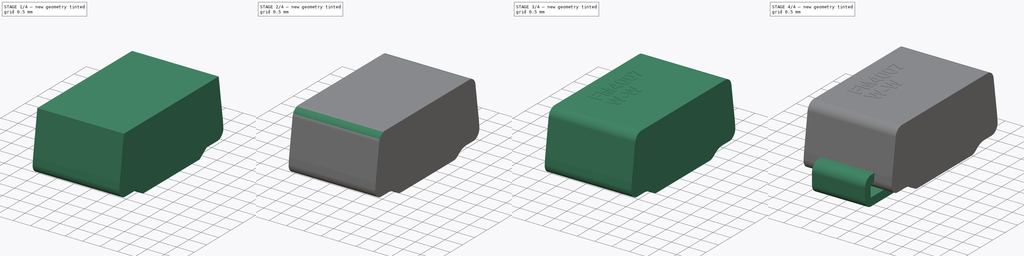
[diagram: build sequence overview — one tinted view per stage of 4, left to right]
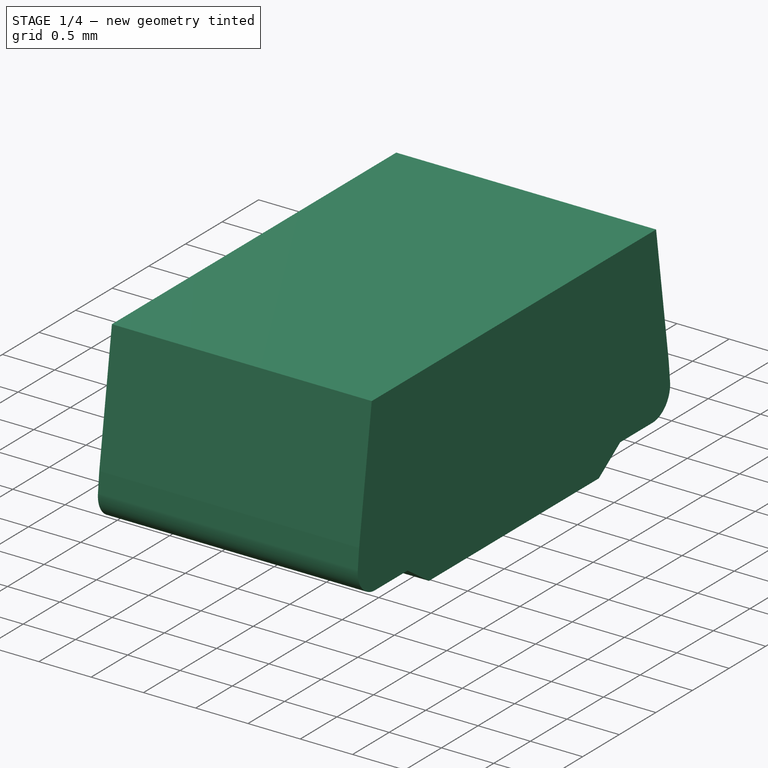
[diagram: stage 1 of 4 — iso view after this stage's code; geometry added in this stage tinted green]
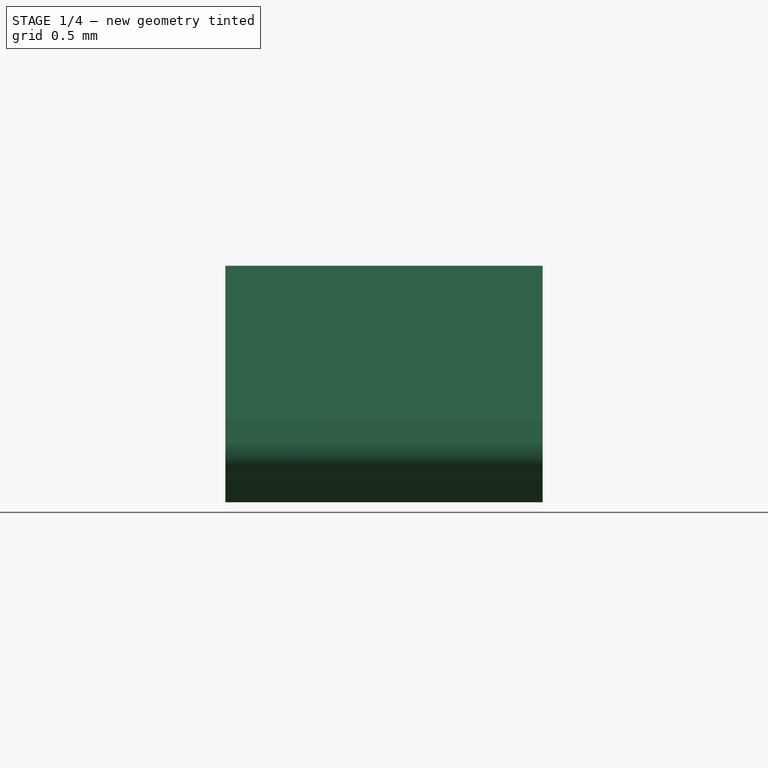
[diagram: stage 1 of 4 — front view after this stage's code; geometry added in this stage tinted green]
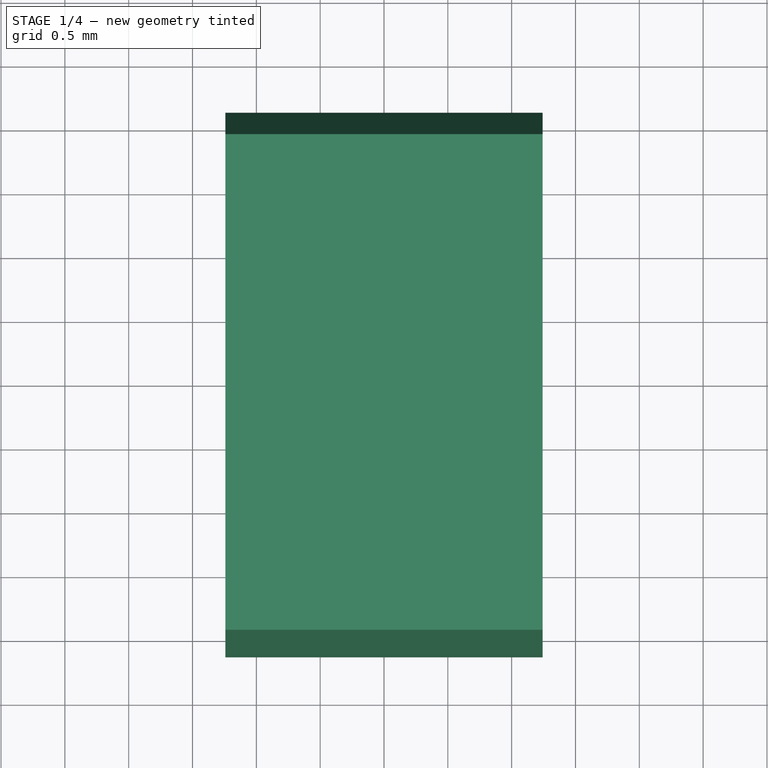
[diagram: stage 1 of 4 — top view after this stage's code; geometry added in this stage tinted green]
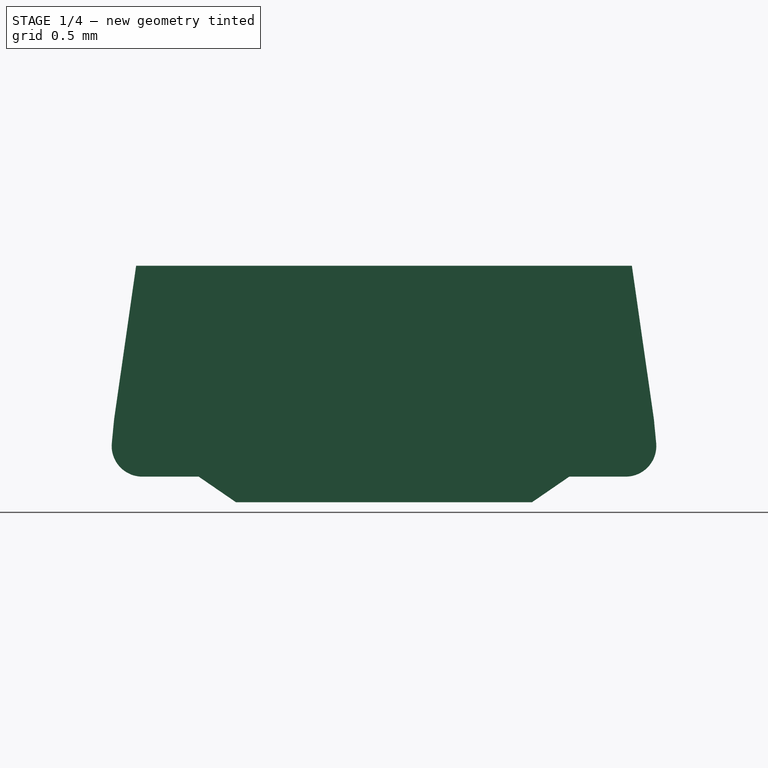
[diagram: stage 1 of 4 — right view after this stage's code; geometry added in this stage tinted green]
FCSTD DOCUMENT  (FreeCAD 0.19R16945 (Git))
Label: DO-214AC
License: All rights reserved
LicenseURL: http://en.wikipedia.org/wiki/All_rights_reserved
objects: Sketcher::SketchObject×6, PartDesign::Fillet×5, PartDesign::Body×4, PartDesign::Pad×3, Part::Part2DObjectPython×2, Part::Extrusion×2, PartDesign::AdditiveLoft×1, PartDesign::FeatureBase×1
note: 28 computed .brp shape members not serialized (recipe doc carries the construction recipe); baked Part::Feature solids carry a one-line shape summary decoded from their .brp

FEATURE [Sketcher::SketchObject] Sketch004  label="Top"
  AttachmentOffset = pos=(0,0,2.005) rot=(0,0,1;0rad)
  MapMode = 5
  Placement = pos=(0,0,2.005) rot=(0,0,1;0rad)
  Support = -> [XY_Plane001]
  expr: AttachmentOffset.Base.z = (1.7 + 2.31) / 2
  expr: Constraints[10] = 0.9 * (4.06 + 4.57) / 2
  expr: Constraints[9] = 1 * (2.18 + 2.79) / 2
  sketch-geometry (4):
    g0: LineSegment StartX=-1.2425 StartY=-1.94175 StartZ=0 EndX=1.2425 EndY=-1.94175 EndZ=0
    g1: LineSegment StartX=1.2425 StartY=-1.94175 StartZ=0 EndX=1.2425 EndY=1.94175 EndZ=0
    g2: LineSegment StartX=1.2425 StartY=1.94175 StartZ=0 EndX=-1.2425 EndY=1.94175 EndZ=0
    g3: LineSegment StartX=-1.2425 StartY=1.94175 StartZ=0 EndX=-1.2425 EndY=-1.94175 EndZ=0
  constraints (11):
    c: Coincident(g0,g1)
    c: Coincident(g1,g2)
    c: Coincident(g2,g3)
    c: Coincident(g3,g0)
    c: Horizontal(g0)
    c: Horizontal(g2)
    c: Vertical(g1)
    c: Vertical(g3)
    c: Symmetric(g1,g0,g-1)
    c: DistanceX(g2,g2) = 2.485
    c: DistanceY(g1,g1) = 3.8835
FEATURE [PartDesign::AdditiveLoft] AdditiveLoft
  Closed = true
  Profile = -> Sketch003
  Ruled = true
  Sections = -> [Sketch002,Sketch004]
FEATURE [PartDesign::Body] Body003  label="PolarityMarking"
  Group = -> [Sketch005,Pad002]
  Origin = -> Origin003
  Tip = -> Pad002
FEATURE [PartDesign::Pad] Pad
  BaseFeature = -> AdditiveLoft
  Length = 2.485
  Length2 = 100
  Midplane = true
  Profile = -> Sketch001
  Type = 0
  expr: Length = (2.18 + 2.79) / 2
FEATURE [PartDesign::Fillet] Fillet001
  Base = -> Pad [Edge19,Edge4]
  BaseFeature = -> Pad
  Radius = 0.24
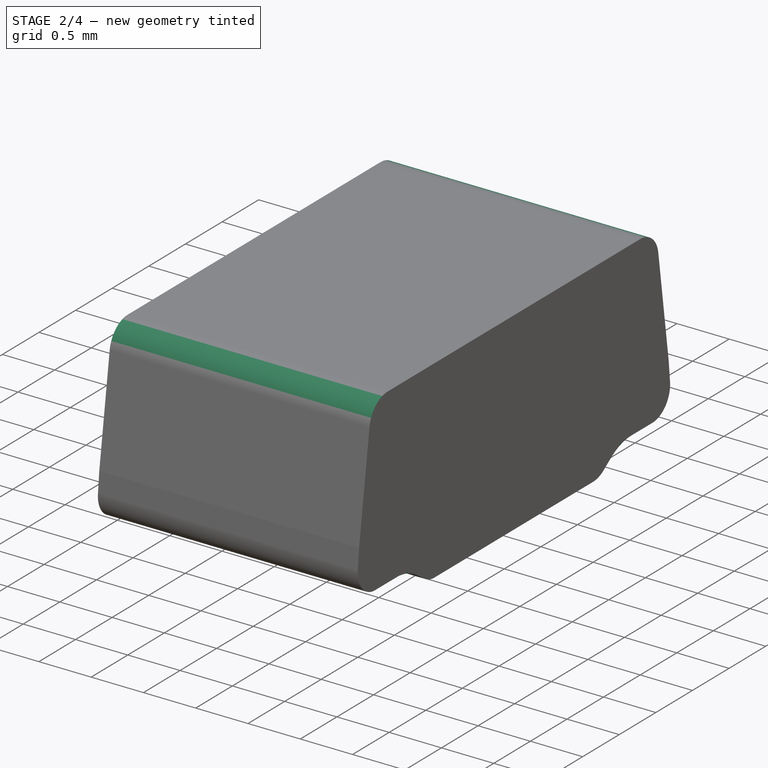
[diagram: stage 2 of 4 — iso view after this stage's code; geometry added in this stage tinted green]
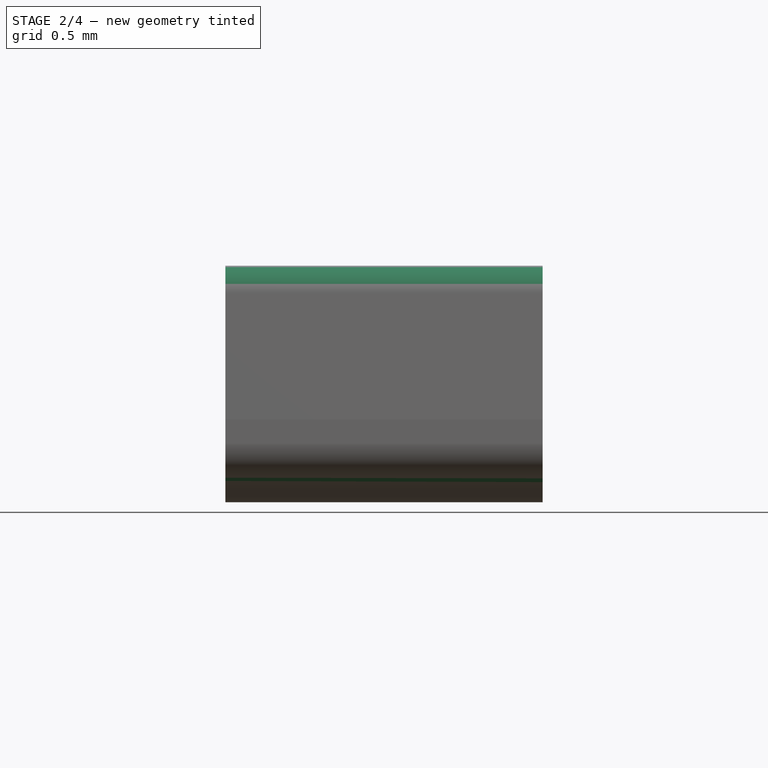
[diagram: stage 2 of 4 — front view after this stage's code; geometry added in this stage tinted green]
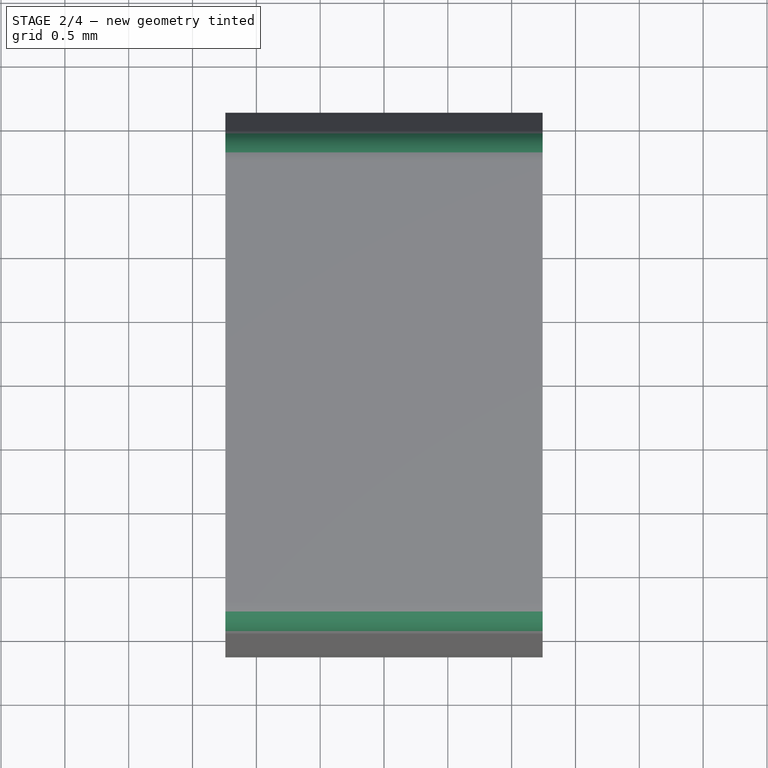
[diagram: stage 2 of 4 — top view after this stage's code; geometry added in this stage tinted green]
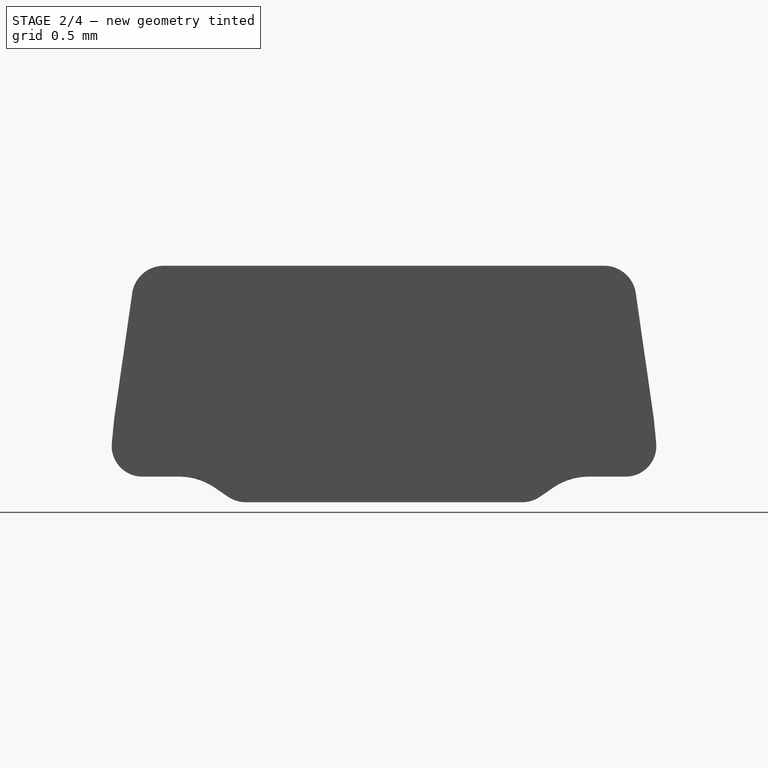
[diagram: stage 2 of 4 — right view after this stage's code; geometry added in this stage tinted green]
FEATURE [PartDesign::Fillet] Fillet002
  Base = -> Fillet001 [Edge40,Edge39]
  BaseFeature = -> Fillet001
  Radius = 0.25
FEATURE [PartDesign::Fillet] Fillet003
  Base = -> Fillet002 [Edge38,Edge29]
  BaseFeature = -> Fillet002
  Radius = 0.5
FEATURE [PartDesign::Fillet] Fillet004
  Base = -> Fillet003 [Edge43,Edge41]
  BaseFeature = -> Fillet003
  Radius = 0.25
FEATURE [PartDesign::Body] Body001  label="Package"
  Group = -> [Sketch001,Sketch002,Sketch003,Sketch004,AdditiveLoft,Pad,Fillet001,Fillet002,Fillet003,Fillet004]
  Origin = -> Origin001
  Tip = -> Fillet004
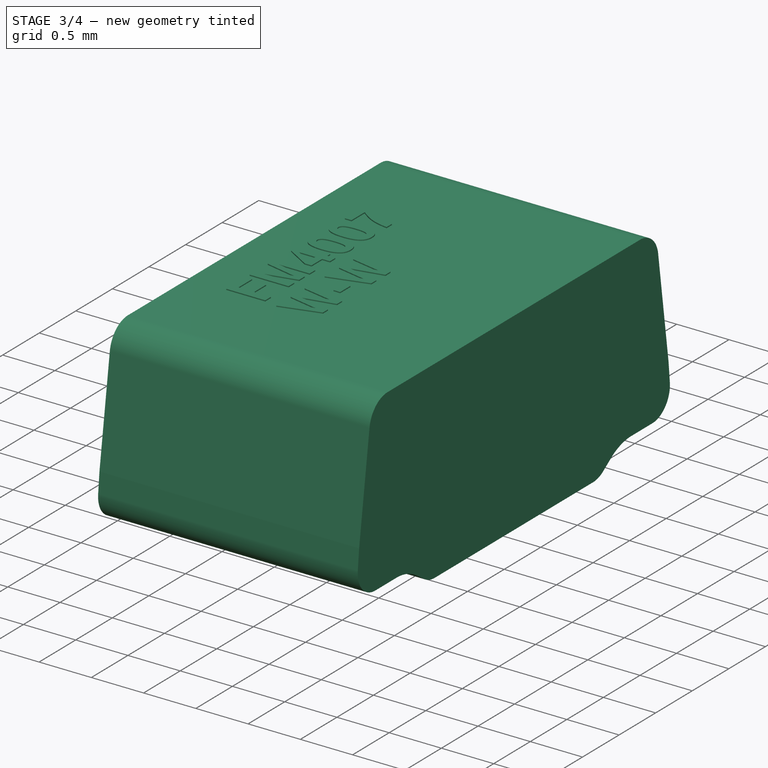
[diagram: stage 3 of 4 — iso view after this stage's code; geometry added in this stage tinted green]
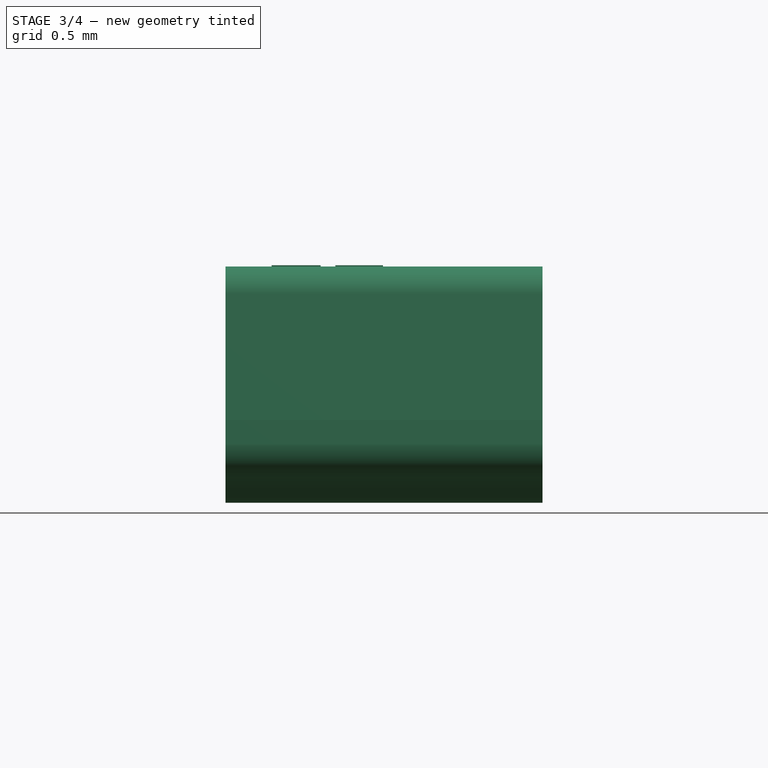
[diagram: stage 3 of 4 — front view after this stage's code; geometry added in this stage tinted green]
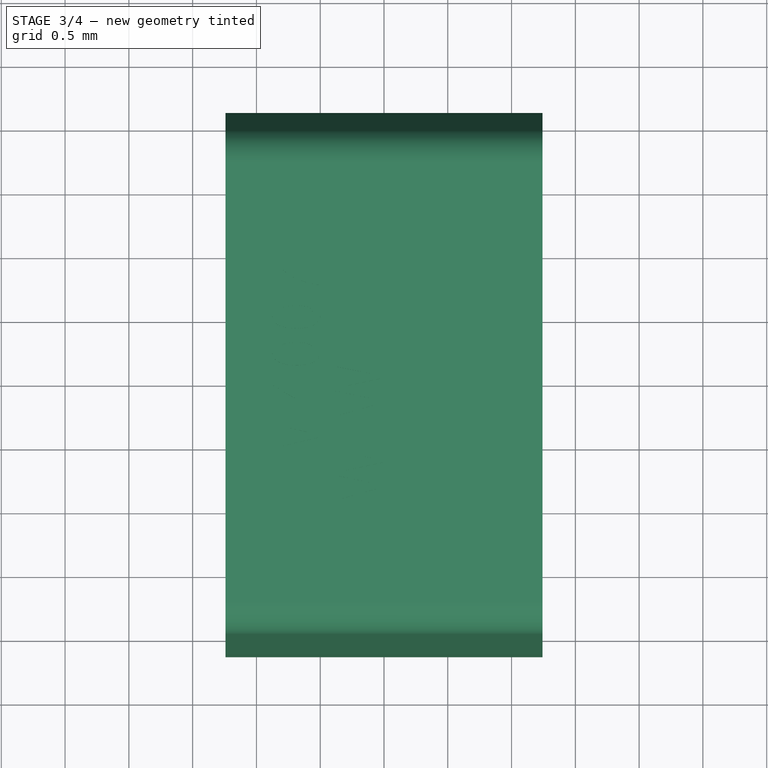
[diagram: stage 3 of 4 — top view after this stage's code; geometry added in this stage tinted green]
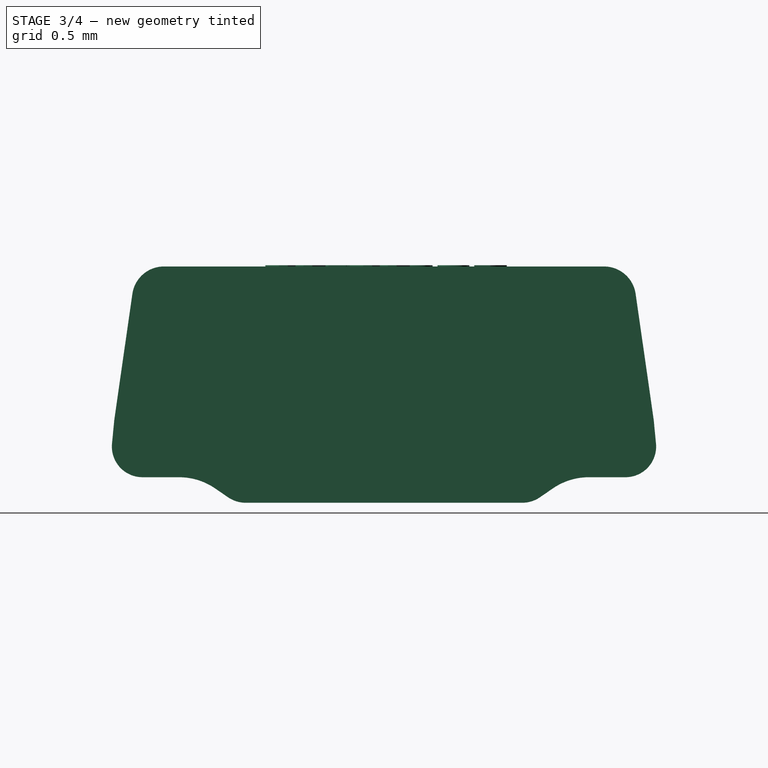
[diagram: stage 3 of 4 — right view after this stage's code; geometry added in this stage tinted green]
FEATURE [PartDesign::Body] Body002  label="TerminalClone"
  BaseFeature = -> Body
  Group = -> [Clone]
  Origin = -> Origin002
  Placement = pos=(0,0,0) rot=(0,0,1;3.14159rad)
  Tip = -> Clone
FEATURE [Sketcher::SketchObject] Sketch005
  AttachmentOffset = pos=(0,0,2.005) rot=(0,0,1;0rad)
  MapMode = 5
  Placement = pos=(0,0,2.005) rot=(0,0,1;0rad)
  Support = -> [XY_Plane003]
  expr: Constraints[9] = 0.8 * (4.06 + 4.57) / 2 / 2
  expr: AttachmentOffset.Base.z = (1.7 + 2.31) / 2
  expr: Constraints[8] = (2.18 + 2.79) / 2
  sketch-geometry (4):
    g0: LineSegment StartX=-1.2425 StartY=-1.726 StartZ=0 EndX=1.2425 EndY=-1.726 EndZ=0
    g1: LineSegment StartX=1.2425 StartY=-1.726 StartZ=0 EndX=1.2425 EndY=-1.18959 EndZ=0
    g2: LineSegment StartX=1.2425 StartY=-1.18959 StartZ=0 EndX=-1.2425 EndY=-1.18959 EndZ=0
    g3: LineSegment StartX=-1.2425 StartY=-1.18959 StartZ=0 EndX=-1.2425 EndY=-1.726 EndZ=0
  constraints (10):
    c: Coincident(g0,g1)
    c: Coincident(g1,g2)
    c: Coincident(g2,g3)
    c: Coincident(g3,g0)
    c: Horizontal(g0)
    c: Vertical(g1)
    c: Vertical(g3)
    c: Symmetric(g1,g2,g-2)
    c: DistanceX(g0,g0) = 2.485
    c: DistanceY(g0,g-1) = 1.726
FEATURE [PartDesign::Pad] Pad002
  Length = 0.01
  Length2 = 100
  Profile = -> Sketch005
  Type = 0
FEATURE [Part::Part2DObjectPython] ShapeString  # Draft 2D object (typed FeaturePython)
  AttachmentOffset = pos=(1.75,-0.25,0) rot=(0,0,-1;1.5708rad)
  FontFile = <userpath>/Desktop/GitHub/freecad-projects/00-fonts/FreeSansBold.ttf
  MapMode = 6
  Placement = pos=(-0.5075,-0.939589,2.005) rot=(0,0,1;1.5708rad)
  Size = 0.2
  String = FM4007
  Support = -> [AdditiveLoft,Pad002]
  Tracking = 0
FEATURE [Part::Extrusion] Extrude  label="Text_1"
  Base = -> ShapeString
  Dir = (0,0,1)
  DirMode = 2
  FaceMakerClass = Part::FaceMakerBullseye
  LengthFwd = 0.01
  LengthRev = 0
  Solid = false
  Symmetric = false
FEATURE [Part::Part2DObjectPython] ShapeString001  # Draft 2D object (typed FeaturePython)
  AttachmentOffset = pos=(1.25,-0.25,0) rot=(0,0,1;-1.5708rad)
  FontFile = <userpath>/Desktop/GitHub/freecad-projects/00-fonts/FreeSansBold.ttf
  MapMode = 6
  Placement = pos=(-0.0075,-0.939589,2.005) rot=(0,0,-1;4.71239rad)
  Size = 0.2
  String = W-W
  Support = -> [AdditiveLoft,Pad002]
  Tracking = 0
FEATURE [Part::Extrusion] Extrude001  label="Text_2"
  Base = -> ShapeString001
  Dir = (0,0,1)
  DirMode = 2
  FaceMakerClass = Part::FaceMakerBullseye
  LengthFwd = 0.01
  LengthRev = 0
  Solid = false
  Symmetric = false
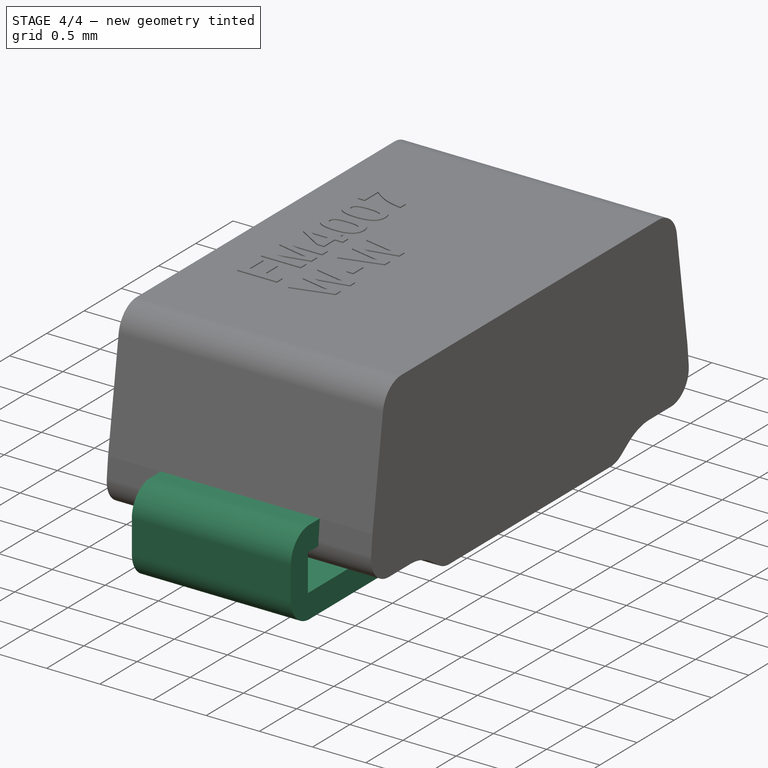
[diagram: stage 4 of 4 — iso view after this stage's code; geometry added in this stage tinted green]
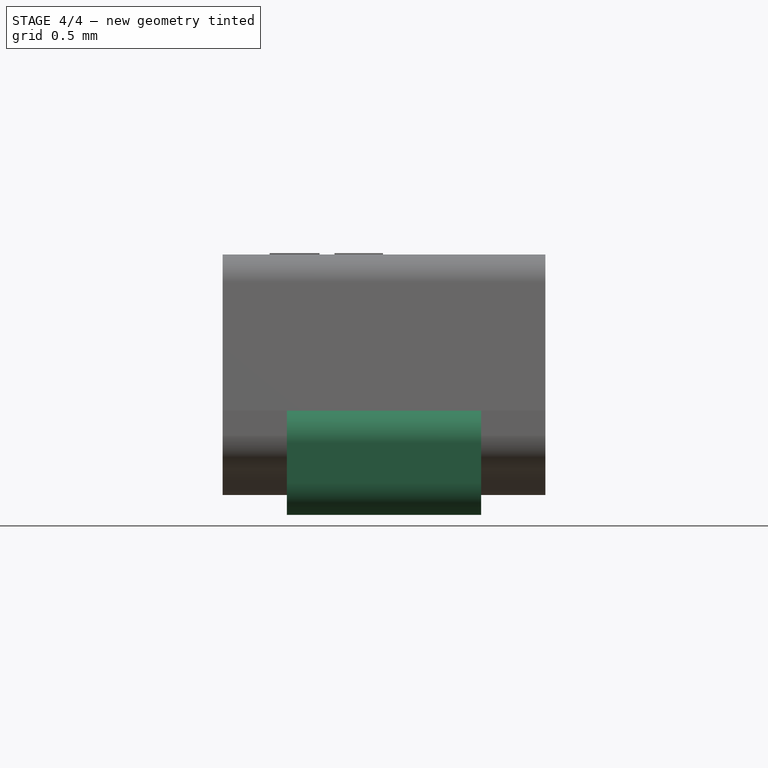
[diagram: stage 4 of 4 — front view after this stage's code; geometry added in this stage tinted green]
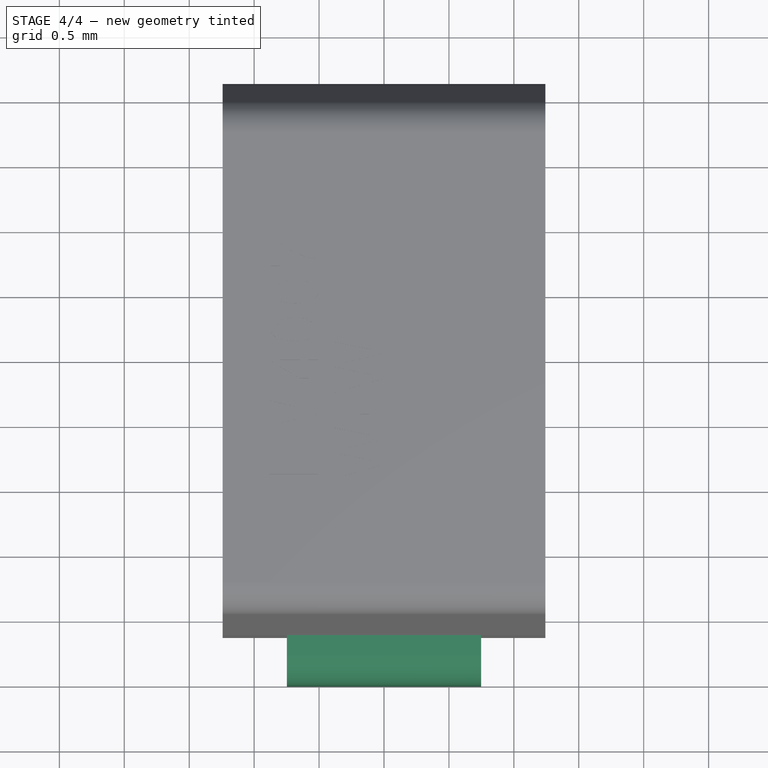
[diagram: stage 4 of 4 — top view after this stage's code; geometry added in this stage tinted green]
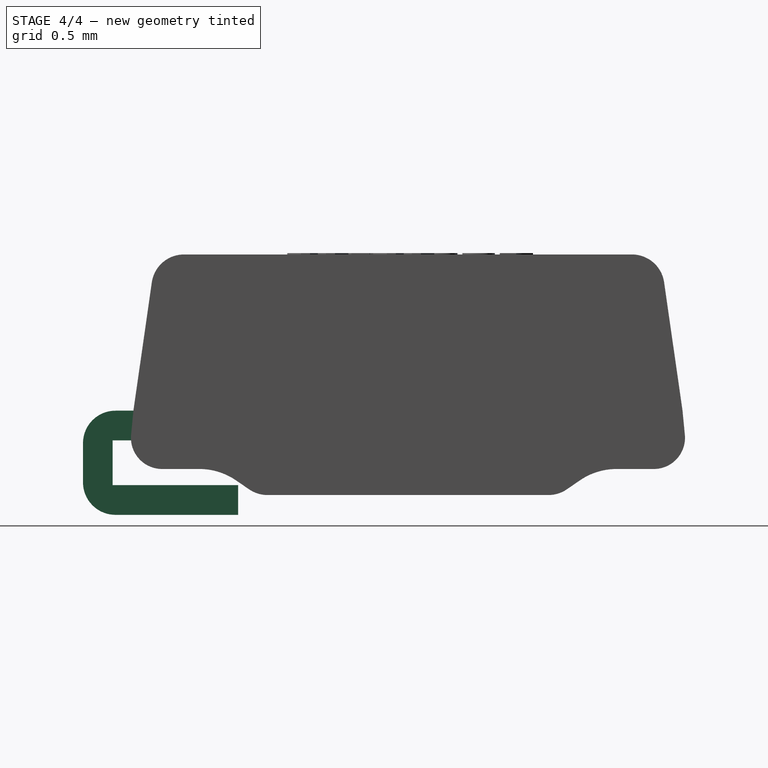
[diagram: stage 4 of 4 — right view after this stage's code; geometry added in this stage tinted green]
FEATURE [Sketcher::SketchObject] Sketch
  MapMode = 5
  Placement = pos=(0,0,0) rot=(0.57735,0.57735,0.57735;2.0944rad)
  Support = -> [YZ_Plane]
  expr: Constraints[24] = (0.89 + 1.5) / 2
  expr: Constraints[18] = (0.152 + 0.305) / 2
  expr: Constraints[26] = 0.4 * (1.7 + 2.31) / 2
  expr: Constraints[2] = (4.7 + 5.31) / 2 / 2
  sketch-geometry (9):
    g0: LineSegment StartX=-2.5025 StartY=0 StartZ=0 EndX=-2.5025 EndY=0.802 EndZ=0
    g1: LineSegment StartX=-2.5025 StartY=0 StartZ=0 EndX=-1.3075 EndY=0 EndZ=0
    g2: LineSegment StartX=-1.3075 StartY=0 StartZ=0 EndX=-1.3075 EndY=0.2285 EndZ=0
    g3: LineSegment StartX=-1.3075 StartY=0.2285 StartZ=0 EndX=-2.274 EndY=0.2285 EndZ=0
    g4: LineSegment StartX=-2.274 StartY=0.2285 StartZ=0 EndX=-2.274 EndY=0.5735 EndZ=0
    g5: LineSegment StartX=-2.274 StartY=0.5735 StartZ=0 EndX=-1.3075 EndY=0.5735 EndZ=0
    g6: LineSegment StartX=-1.3075 StartY=0.5735 StartZ=0 EndX=-1.3075 EndY=0.802 EndZ=0
    g7: LineSegment StartX=-1.3075 StartY=0.802 StartZ=0 EndX=-2.5025 EndY=0.802 EndZ=0
    g8: LineSegment [constr] StartX=-2.274 StartY=0.406645 StartZ=0 EndX=-2.5025 EndY=0.406645 EndZ=0
  constraints (27):
    c: PointOnObject(g0,g-1)
    c: Vertical(g0)
    c: DistanceX(g0,g-1) = 2.5025
    c: Coincident(g1,g0)
    c: PointOnObject(g1,g-1)
    c: Coincident(g2,g1)
    c: Vertical(g2)
    c: Coincident(g3,g2)
    c: Horizontal(g3)
    c: Coincident(g4,g3)
    c: Vertical(g4)
    c: Coincident(g5,g4)
    c: Horizontal(g5)
    c: Coincident(g6,g5)
    c: Vertical(g6)
    c: Coincident(g7,g6)
    c: Coincident(g7,g0)
    c: Horizontal(g7)
    c: DistanceY(g2,g2) = 0.2285
    c: Equal(g2,g6)
    c: PointOnObject(g8,g4)
    c: PointOnObject(g8,g0)
    c: Horizontal(g8)
    c: Equal(g8,g6)
    c: DistanceX(g1,g1) = 1.195
    c: Equal(g1,g7)
    c: DistanceY(g0,g0) = 0.802
FEATURE [Sketcher::SketchObject] Sketch001
  MapMode = 5
  Placement = pos=(0,0,0) rot=(0.57735,0.57735,0.57735;2.0944rad)
  Support = -> [YZ_Plane001]
  expr: Constraints[5] = (0.102 + 0.203) / 2
  expr: Constraints[6] = 0.05 * (1.7 + 2.31)
  sketch-geometry (4):
    g0: LineSegment StartX=-1.15959 StartY=0.1525 StartZ=0 EndX=1.15959 EndY=0.1525 EndZ=0
    g1: LineSegment StartX=1.15959 StartY=0.1525 StartZ=0 EndX=1.45149 EndY=0.353 EndZ=0
    g2: LineSegment StartX=1.45149 StartY=0.353 StartZ=0 EndX=-1.45149 EndY=0.353 EndZ=0
    g3: LineSegment StartX=-1.45149 StartY=0.353 StartZ=0 EndX=-1.15959 EndY=0.1525 EndZ=0
  constraints (8):
    c: Coincident(g0,g1)
    c: Coincident(g1,g2)
    c: Coincident(g2,g3)
    c: Coincident(g3,g0)
    c: Symmetric(g0,g0,g-2)
    c: DistanceY(g-1,g0) = 0.1525
    c: DistanceY(g3,g3) = 0.2005
    c: Symmetric(g2,g1,g-2)
FEATURE [Sketcher::SketchObject] Sketch002  label="Middle"
  AttachmentOffset = pos=(0,0,0.802) rot=(0,0,1;0rad)
  MapMode = 5
  Placement = pos=(0,0,0.802) rot=(0,0,1;0rad)
  Support = -> [XY_Plane001]
  expr: Constraints[9] = 1 * (2.18 + 2.79) / 2
  expr: Constraints[10] = 0.98 * (4.06 + 4.57) / 2
  expr: AttachmentOffset.Base.z = 0.4 * (1.7 + 2.31) / 2
  sketch-geometry (4):
    g0: LineSegment StartX=-1.2425 StartY=-2.11435 StartZ=0 EndX=1.2425 EndY=-2.11435 EndZ=0
    g1: LineSegment StartX=1.2425 StartY=-2.11435 StartZ=0 EndX=1.2425 EndY=2.11435 EndZ=0
    g2: LineSegment StartX=1.2425 StartY=2.11435 StartZ=0 EndX=-1.2425 EndY=2.11435 EndZ=0
    g3: LineSegment StartX=-1.2425 StartY=2.11435 StartZ=0 EndX=-1.2425 EndY=-2.11435 EndZ=0
  constraints (11):
    c: Coincident(g0,g1)
    c: Coincident(g1,g2)
    c: Coincident(g2,g3)
    c: Coincident(g3,g0)
    c: Horizontal(g0)
    c: Horizontal(g2)
    c: Vertical(g1)
    c: Vertical(g3)
    c: Symmetric(g1,g0,g-1)
    c: DistanceX(g2,g2) = 2.485
    c: DistanceY(g1,g1) = 4.2287
FEATURE [Sketcher::SketchObject] Sketch003  label="Bottom"
  AttachmentOffset = pos=(0,0,0.353) rot=(0,0,1;0rad)
  MapMode = 5
  Placement = pos=(0,0,0.353) rot=(0,0,1;0rad)
  Support = -> [XY_Plane001]
  expr: AttachmentOffset.Base.z = (0.102 + 0.203) / 2 + 0.05 * (1.7 + 2.31)
  expr: Constraints[10] = (4.06 + 4.57) / 2
  expr: Constraints[9] = (2.18 + 2.79) / 2
  sketch-geometry (4):
    g0: LineSegment StartX=-1.2425 StartY=-2.1575 StartZ=0 EndX=1.2425 EndY=-2.1575 EndZ=0
    g1: LineSegment StartX=1.2425 StartY=-2.1575 StartZ=0 EndX=1.2425 EndY=2.1575 EndZ=0
    g2: LineSegment StartX=1.2425 StartY=2.1575 StartZ=0 EndX=-1.2425 EndY=2.1575 EndZ=0
    g3: LineSegment StartX=-1.2425 StartY=2.1575 StartZ=0 EndX=-1.2425 EndY=-2.1575 EndZ=0
  constraints (11):
    c: Coincident(g0,g1)
    c: Coincident(g1,g2)
    c: Coincident(g2,g3)
    c: Coincident(g3,g0)
    c: Horizontal(g0)
    c: Horizontal(g2)
    c: Vertical(g1)
    c: Vertical(g3)
    c: Symmetric(g1,g0,g-1)
    c: DistanceX(g2,g2) = 2.485
    c: DistanceY(g1,g1) = 4.315
FEATURE [PartDesign::Pad] Pad001
  Length = 1.495
  Length2 = 100
  Midplane = true
  Placement = pos=(0,0,0) rot=(0.57735,0.57735,0.57735;2.0944rad)
  Profile = -> Sketch
  Type = 0
  expr: Length = (1.29 + 1.7) / 2
FEATURE [PartDesign::Fillet] Fillet
  Base = -> Pad001 [Edge2,Edge1]
  BaseFeature = -> Pad001
  Placement = pos=(0,0,0) rot=(0.57735,0.57735,0.57735;2.0944rad)
  Radius = 0.25
FEATURE [PartDesign::Body] Body  label="Terminal"
  Group = -> [Sketch,Pad001,Fillet]
  Origin = -> Origin
  Tip = -> Fillet
FEATURE [PartDesign::FeatureBase] Clone
  BaseFeature = -> Body
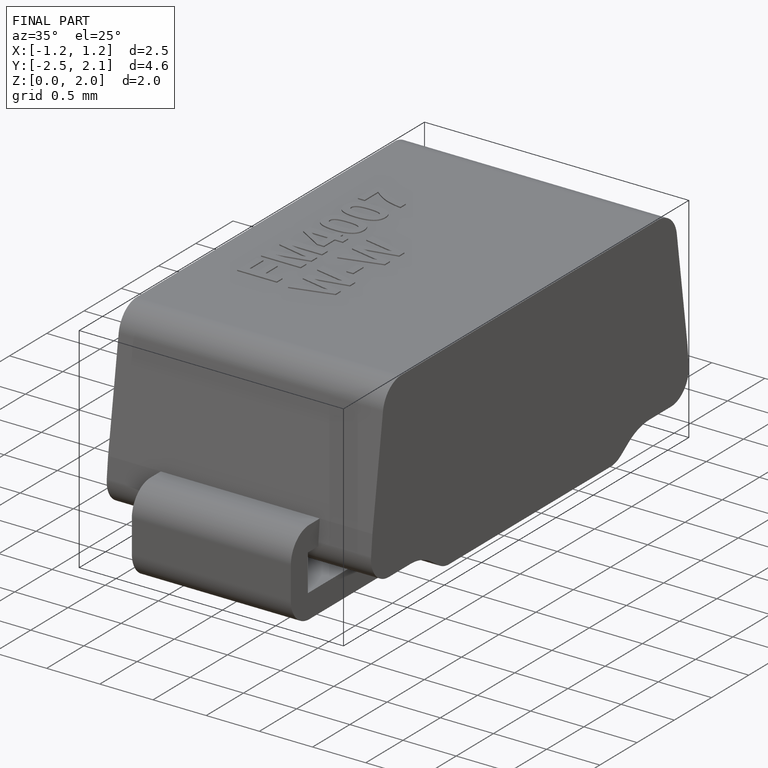
[diagram: finished part — iso view with bounding-box wireframe]
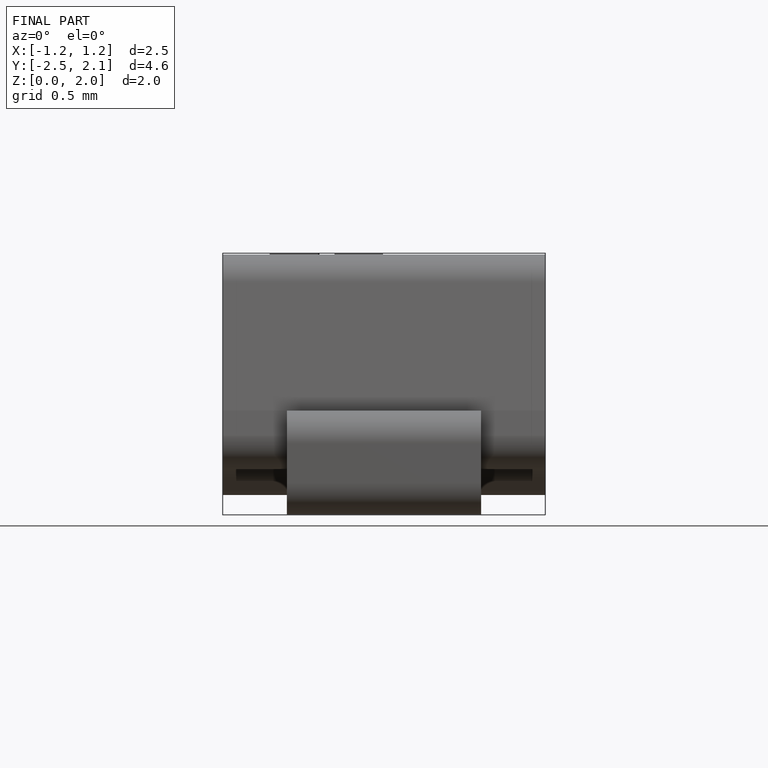
[diagram: finished part — front view with bounding-box wireframe]
